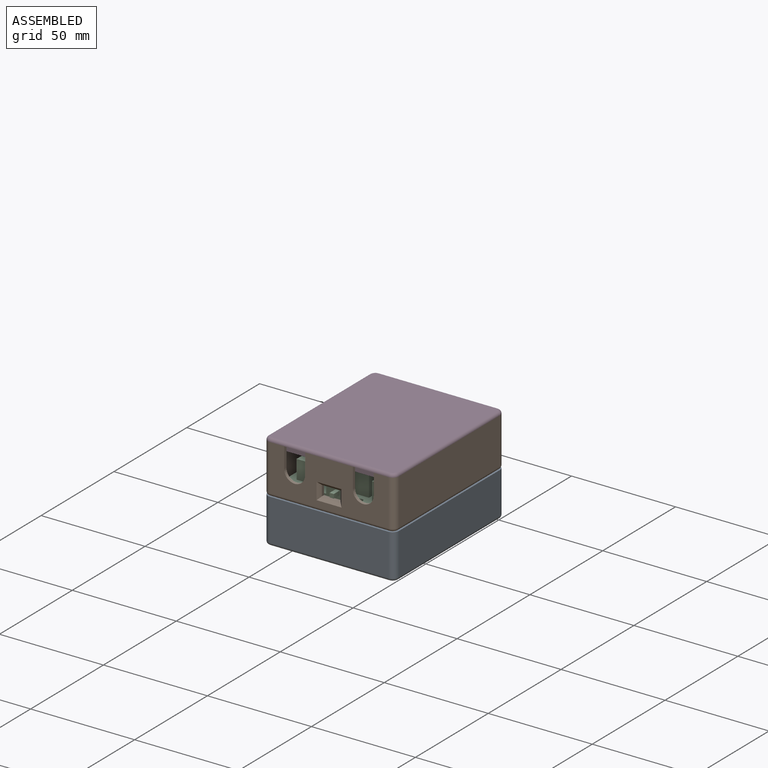
[diagram: assembled view]
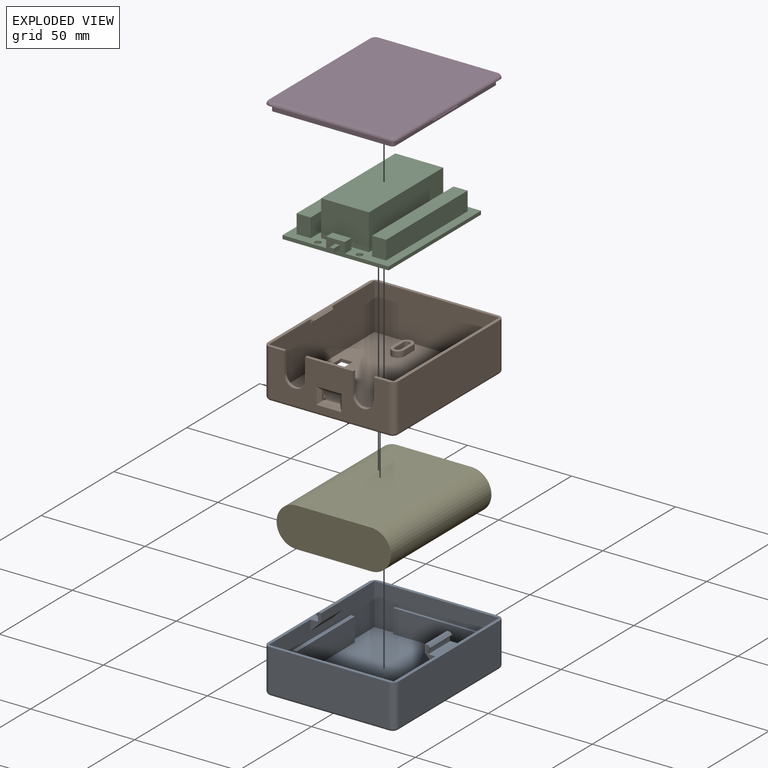
[diagram: exploded view]
GUIDED TOUR — MATED ASSEMBLY (Onshape document 5930b59072e9035f0954241a, AutoMate assembly 5930b59072e9035f0954241a_2f8eb5e6b74b52fa19efbef9_056d9d594d839ffbad7e7a4e_default)

This assembly has 5 components, labeled P0..P4 below (a component is one placed occurrence of a part; the same part can appear more than once), held together by 4 mates. A mate is a constraint between two components; its type names the relative motion it leaves free:
  FASTENED — locks the two components together rigidly (no relative motion),
  SLIDER — leaves translation along the listed axis free.
Axis/direction vectors are unit vectors and 'through' points are millimeter coordinates, both in the assembly's world frame.

MATES
  1. SLIDER "Slider 1": P0 <-> P4, axis (0.000, 0.000, 1.000) through (0.98, -1.56, -21.94) mm
  2. FASTENED "Fastened 2": P2 <-> P1, direction (0.000, 0.000, 1.000) through (-9.28, -32.31, 4.11) mm
  3. FASTENED "Fastened 1": P1 <-> P0, direction (0.000, 0.000, -1.000) through (29.48, -36.31, -1.94) mm
  4. FASTENED "Fastened 3": P3 <-> P1, direction (0.000, 0.000, -1.000) through (1.00, -1.57, 21.31) mm

ASSEMBLY ORDER
  1. P4 — the base component [order verified]
  2. P0 [order verified]
  3. P1 [order verified]
  4. P2 [order verified]
  5. P3 [order verified]
Order-tag legend:
  [order verified] — this step's position reverses a verified removal order: the component was checked to insert without passing through the ones already placed.

Of the 5 components, 1 carries the full construction recipe — the FeatureScript program that regenerates the part's solid from scratch; the rest are supplied as boundary geometry only.
Each toured component is shown spotlighted twice — in the assembled view, then in the exploded view, where a leader line traces a displaced component back to its assembled socket (saturated green if recipe-attached, orange if geometry-only; every other component desaturated gray) — followed by its recipe or geometry summary and the mates that hold it.
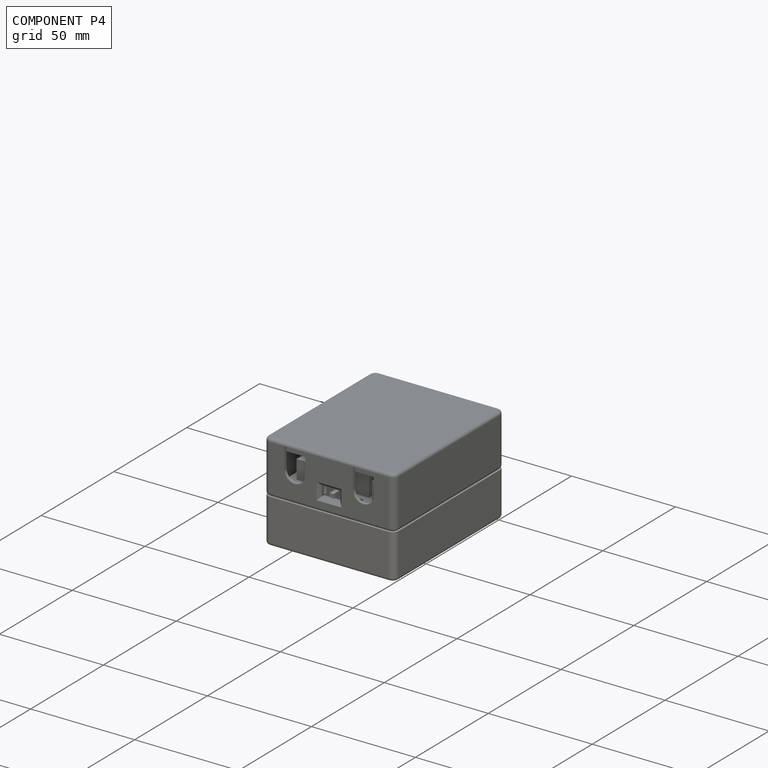
[diagram: component P4 — assembled]
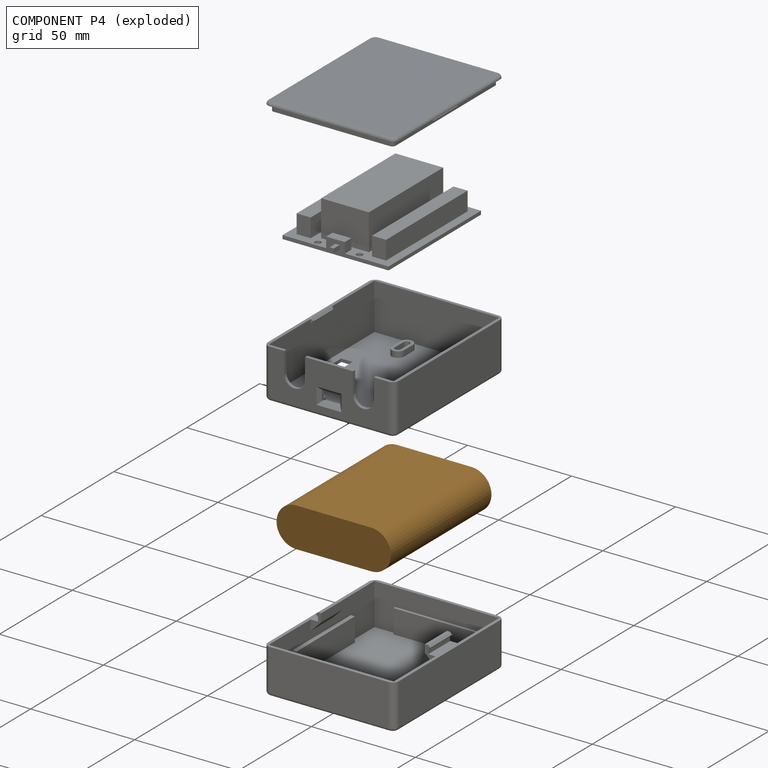
[diagram: component P4 — exploded]
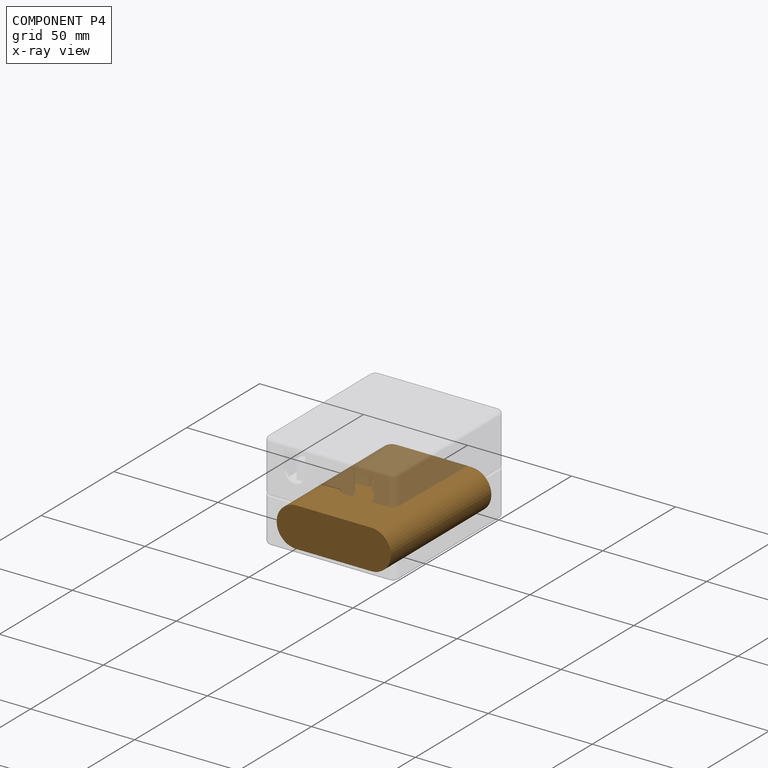
[diagram: component P4 — x-ray view]
COMPONENT P4 — geometry summary (no construction recipe available for this part):
  bounding box: 69.0 x 55.0 x 19.0 mm
  B-rep topology: 1 solid, 6 faces, 24 edges
  volume: 66759 mm^3 (93% of its bounding box)
  symmetry: 2-fold rotationally symmetric about the x axis; 2-fold rotationally symmetric about the y axis; 2-fold rotationally symmetric about the z axis; mirror-symmetric across its x mid-plane, y mid-plane, z mid-plane
Held by: SLIDER mate "Slider 1" to P0.
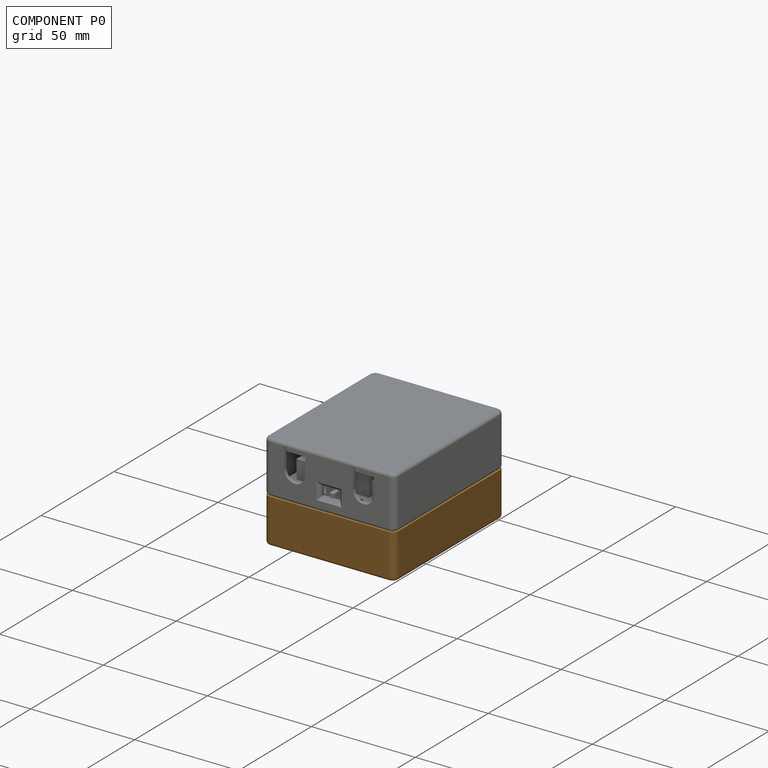
[diagram: component P0 — assembled]
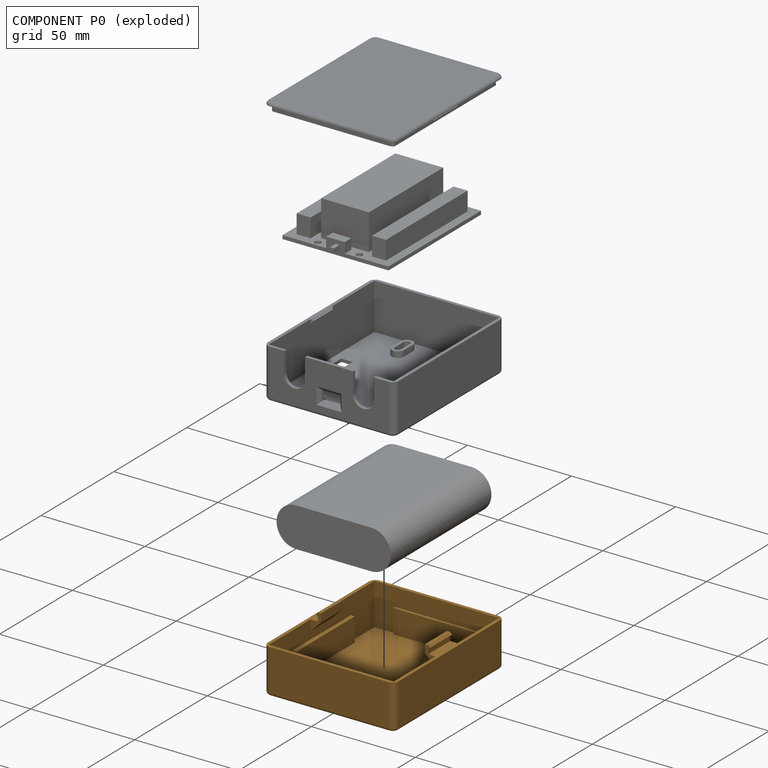
[diagram: component P0 — exploded]
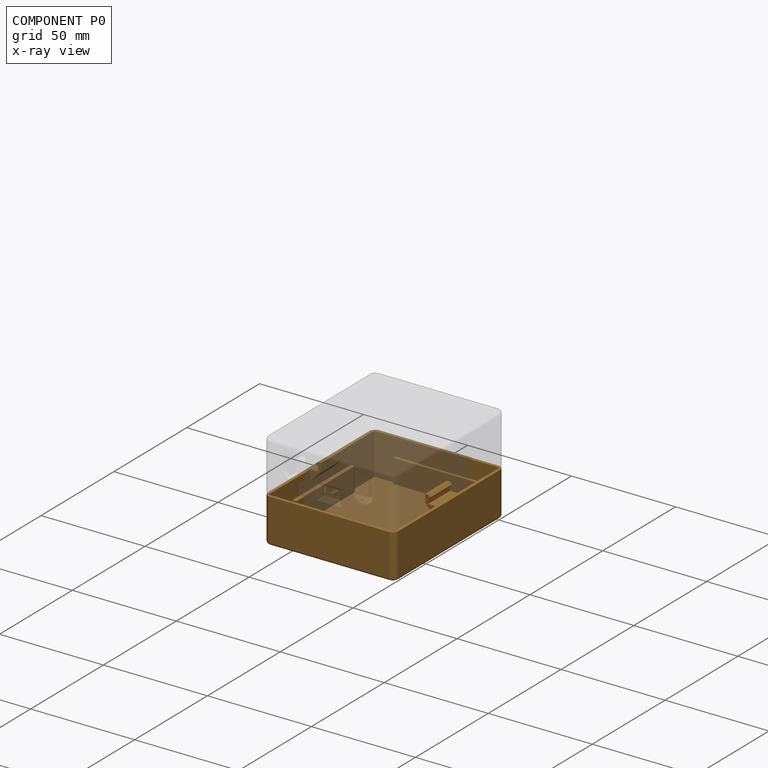
[diagram: component P0 — x-ray view]
COMPONENT P0 — geometry summary (no construction recipe available for this part):
  bounding box: 76.0 x 63.5 x 25.5 mm
  B-rep topology: 1 solid, 55 faces, 296 edges
  volume: 18517 mm^3 (15% of its bounding box)
  symmetry: 2-fold rotationally symmetric about the z axis; mirror-symmetric across its x mid-plane, y mid-plane
Held by: SLIDER mate "Slider 1" to P4; FASTENED mate "Fastened 1" to P1.
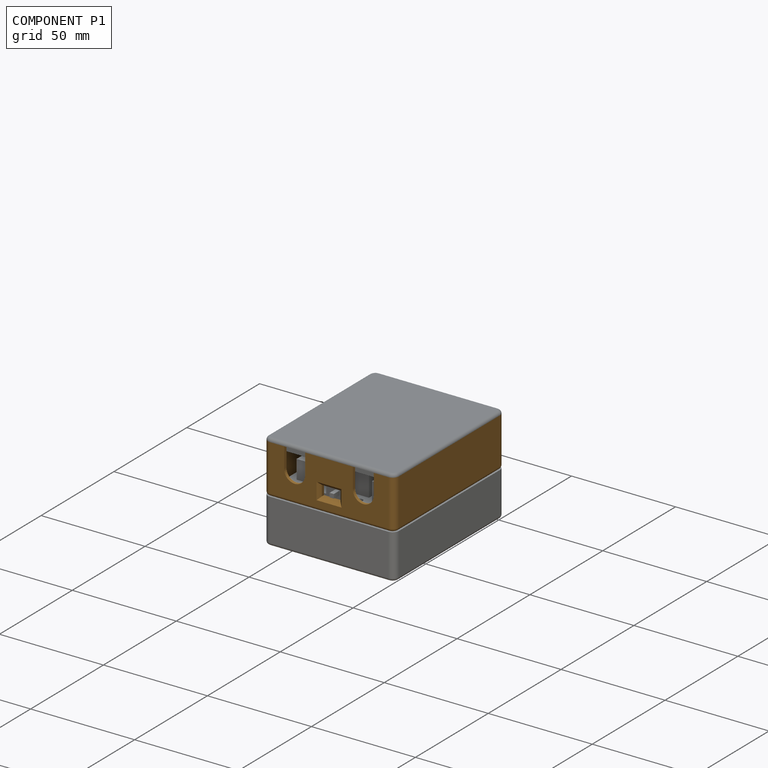
[diagram: component P1 — assembled]
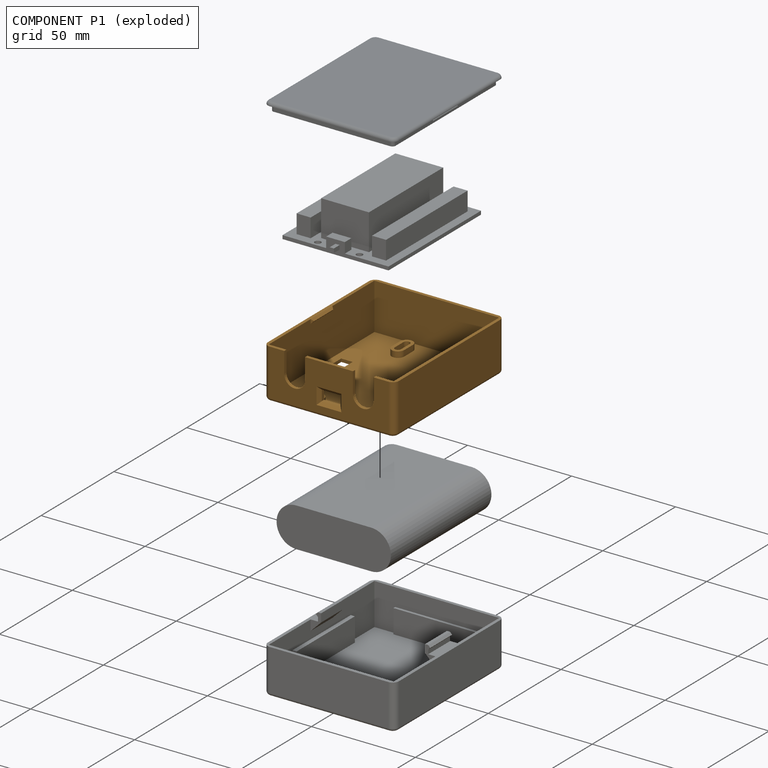
[diagram: component P1 — exploded]
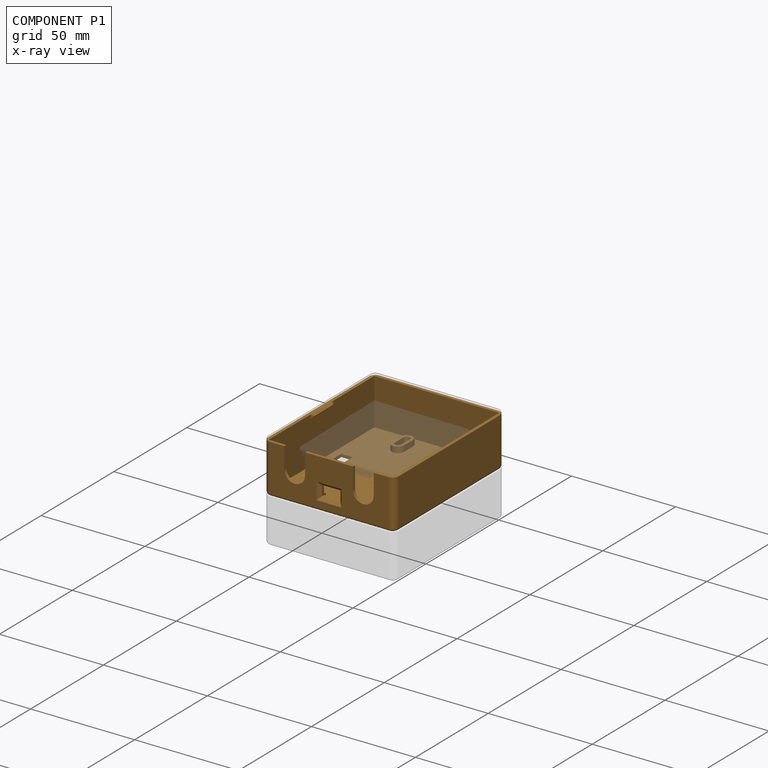
[diagram: component P1 — x-ray view]
COMPONENT P1 — geometry summary (no construction recipe available for this part):
  bounding box: 76.0 x 63.5 x 23.8 mm
  B-rep topology: 1 solid, 96 faces, 480 edges
  volume: 15131 mm^3 (13% of its bounding box)
Held by: FASTENED mate "Fastened 2" to P2; FASTENED mate "Fastened 1" to P0; FASTENED mate "Fastened 3" to P3.
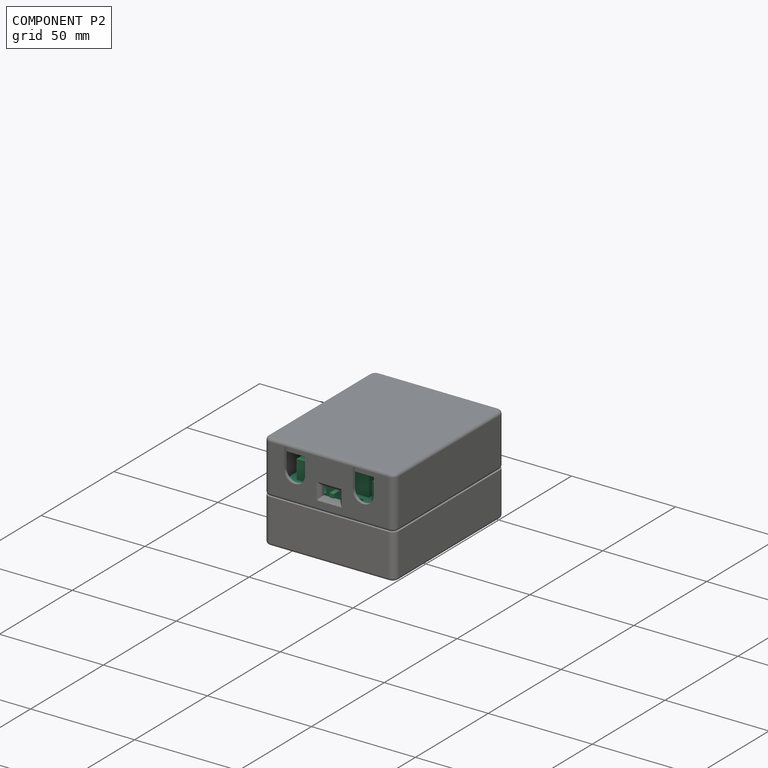
[diagram: component P2 — assembled]
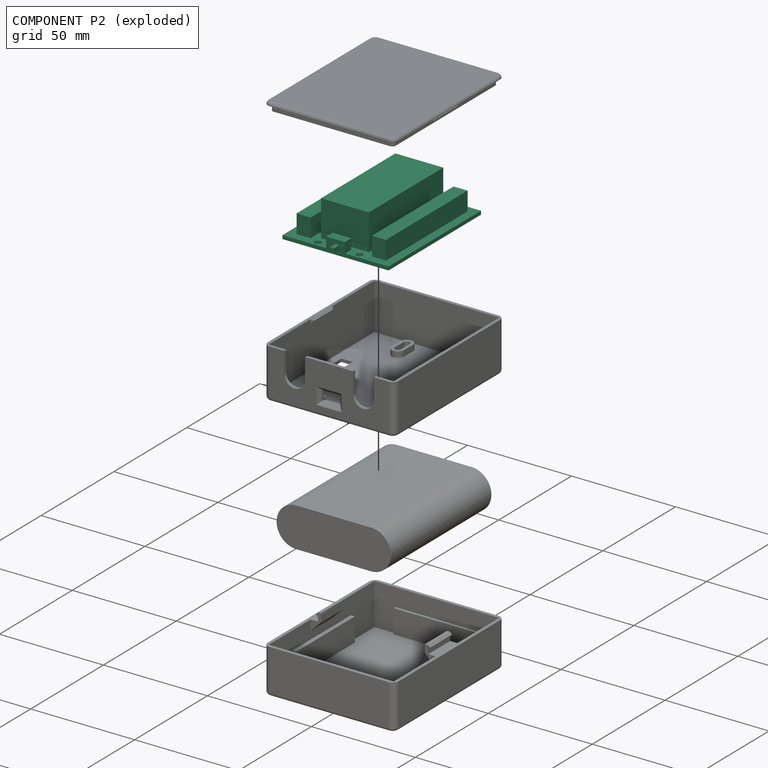
[diagram: component P2 — exploded]
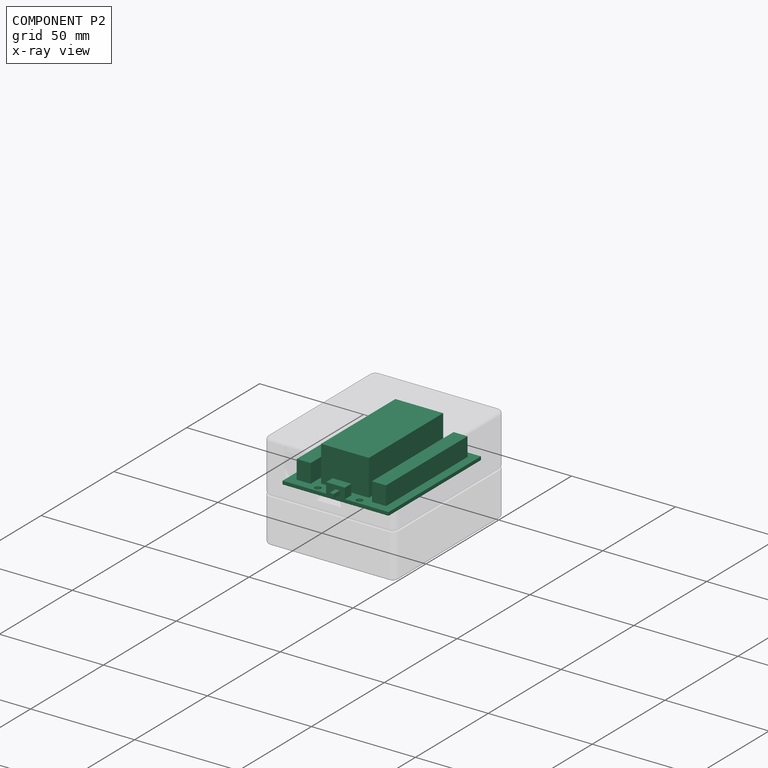
[diagram: component P2 — x-ray view]
COMPONENT P2 — recipe-attached (CADFS 00786195, mesh-verified: the recipe's output STEP matches this component's geometry to below the mesh-comparison resolution (tessellation chordal tolerance ~0.13 mm)).
Held by: FASTENED mate "Fastened 2" to P1.
Construction recipe (FeatureScript — the CAD program that rebuilds this solid; sketch coordinates are in the units given by the * unit suffixes, e.g. mm):

FeatureScript 1511;
import(path : "onshape/std/geometry.fs", version : "1511.0");
import(path : "onshape/std/common.fs", version : "1511.0");
const mm = millimeter;
const VERTEX = EntityType.VERTEX;
const EDGE = EntityType.EDGE;
const FACE = EntityType.FACE;
const BODY = EntityType.BODY;
function v(x, y){return vector(x, y);}
function OD(order){return orderDisambiguation(order);}
function OSD(set){return originalSetDisambiguation(set);}
function TD(topology){return topologyDisambiguation(topology);}
function TDD(query){return trueDependencyDisambiguation(query);}
function sQuery(a, b, c) {return sketchEntityQuery(a, b, c);}

annotation { "Feature Type Name" : "Feature", "Feature Type Description" : "" }
export const myFeature = defineFeature(function(context is Context, id is Id, definition is map)
    precondition{}
    {
        {
            assignVariable(context, id + "F0", {"name" : "board_thickness", "anyValue" : 1.7 * mm});
        }
        {
            assignVariable(context, id + "F1", {"name" : "terminalblock_height", "anyValue" : 9 * mm});
        }
        {
            assignVariable(context, id + "F2", {"name" : "switchbox_height", "anyValue" : 5 * mm});
        }
        {
            assignVariable(context, id + "F3", {"name" : "switch_length", "anyValue" : 4 * mm});
        }
        {
            var Q0;
            Q0=qCreatedBy(makeId("Top.planeOp"),FACE);
            var sketch = newSketch(context, id + "F4", { "sketchPlane" : qUnion([Q0])});
            skLineSegment(sketch, "E0.bottom", {"start": v(-9.58, 23.23) * mm, "end": v(53.92, 23.23) * mm});
            skLineSegment(sketch, "E0.top", {"start": v(-9.58, -27.77) * mm, "end": v(53.92, -27.77) * mm});
            skLineSegment(sketch, "E0.left", {"start": v(-9.58, 23.23) * mm, "end": v(-9.58, -27.77) * mm});
            skLineSegment(sketch, "E0.right", {"start": v(53.92, 23.23) * mm, "end": v(53.92, -27.77) * mm});
            skCircle(sketch, "E1", {"center": v(-7.04, 7.99) * mm, "radius": 1.5 * mm});
            skCircle(sketch, "E2.0.1.0", {"center": v(-7.04, -12.01) * mm, "radius": 1.5 * mm});
            skCircle(sketch, "E2.1.0.0", {"center": v(50.96, 7.99) * mm, "radius": 1.5 * mm});
            skCircle(sketch, "E2.1.1.0", {"center": v(50.96, -12.01) * mm, "radius": 1.5 * mm});
            skLineSegment(sketch, "E2.direction1", {"start": v(-7.04, 7.99) * mm, "end": v(50.96, 7.99) * mm, "construction": true});
            skLineSegment(sketch, "E2.direction2", {"start": v(-7.04, 7.99) * mm, "end": v(-7.04, -12.01) * mm, "construction": true});
            skSolve(sketch);
        }
        {
            var Q0;
            Q0=makeQuery(id+"F4.imprint","IMPRINT",FACE,{"disambiguationData":[TD([[makeQuery(id+"F4.imprint","IMPRINT",EDGE,{"derivedFrom":sQuery(id+"F4.wireOp",EDGE,"E0.bottom")}),-1.0]])]});
            extrude(context, id + "F5", {"entities" : qUnion([Q0]), "depth" : getVariable(context, 'board_thickness'), "offsetDistance" : 25 * mm});
        }
        {
            var Q0;
            Q0=makeQuery(id+"F5.opExtrude","CAP_FACE",FACE,{"disambiguationData":[OSD([sQuery(id+"F4.wireOp",EDGE,"E0.bottom"),sQuery(id+"F4.wireOp",EDGE,"E0.top"),sQuery(id+"F4.wireOp",EDGE,"E0.left"),sQuery(id+"F4.wireOp",EDGE,"E0.right"),sQuery(id+"F4.wireOp",EDGE,"E1"),sQuery(id+"F4.wireOp",EDGE,"E2.0.1.0"),sQuery(id+"F4.wireOp",EDGE,"E2.1.0.0"),sQuery(id+"F4.wireOp",EDGE,"E2.1.1.0")])],"isStart":false});
            var sketch = newSketch(context, id + "F6", { "sketchPlane" : qUnion([Q0])});
            skLineSegment(sketch, "E3", {"start": v(-9.58, -2.27) * mm, "end": v(53.92, -2.27) * mm, "construction": true});
            skLineSegment(sketch, "E4.bottom", {"start": v(-3.05, 9.23) * mm, "end": v(47.95, 9.23) * mm});
            skLineSegment(sketch, "E4.top", {"start": v(-3.05, -13.77) * mm, "end": v(47.95, -13.77) * mm});
            skLineSegment(sketch, "E4.left", {"start": v(-3.05, 9.23) * mm, "end": v(-3.05, -13.77) * mm});
            skLineSegment(sketch, "E4.right", {"start": v(47.95, 9.23) * mm, "end": v(47.95, -13.77) * mm});
            skLineSegment(sketch, "E5.bottom", {"start": v(-5.58, 12.48) * mm, "end": v(50.42, 12.48) * mm});
            skLineSegment(sketch, "E5.top", {"start": v(-5.58, 19.23) * mm, "end": v(50.42, 19.23) * mm});
            skLineSegment(sketch, "E5.left", {"start": v(50.42, 19.23) * mm, "end": v(50.42, 12.48) * mm});
            skLineSegment(sketch, "E5.right", {"start": v(-5.58, 19.23) * mm, "end": v(-5.58, 12.48) * mm});
            skLineSegment(sketch, "E6.bottom", {"start": v(-9.58, -6.77) * mm, "end": v(-5.13, -6.77) * mm});
            skLineSegment(sketch, "E6.top", {"start": v(-9.58, 2.23) * mm, "end": v(-5.13, 2.23) * mm});
            skLineSegment(sketch, "E6.left", {"start": v(-9.58, -6.77) * mm, "end": v(-9.58, 2.23) * mm});
            skLineSegment(sketch, "E6.right", {"start": v(-5.13, -6.77) * mm, "end": v(-5.13, 2.23) * mm});
            skLineSegment(sketch, "E7.MirrorCS", {"start": v(-5.58, -23.77) * mm, "end": v(50.42, -23.77) * mm});
            skLineSegment(sketch, "E8.MirrorCS", {"start": v(-5.58, -23.77) * mm, "end": v(-5.58, -17.02) * mm});
            skLineSegment(sketch, "E9.MirrorCS", {"start": v(-5.58, -17.02) * mm, "end": v(50.42, -17.02) * mm});
            skLineSegment(sketch, "E10.MirrorCS", {"start": v(50.42, -23.77) * mm, "end": v(50.42, -17.02) * mm});
            skPoint(sketch, "E11", {"position": v(-5.13, -2.27) * mm});
            skPoint(sketch, "E12", {"position": v(-3.05, -2.27) * mm});
            skSolve(sketch);
        }
        {
            var Q0;
            Q0=makeQuery(id+"F6.imprint","IMPRINT",FACE,{"disambiguationData":[TD([[makeQuery(id+"F6.imprint","IMPRINT",EDGE,{"derivedFrom":sQuery(id+"F6.wireOp",EDGE,"E4.bottom")}),-1.0]])]});
            extrude(context, id + "F7", {"entities" : qUnion([Q0]), "operationType" : NewBodyOperationType.ADD, "depth" : 17.3 * mm, "offsetDistance" : 25 * mm});
        }
        {
            var Q0;
            Q0=makeQuery(id+"F6.imprint","IMPRINT",FACE,{"disambiguationData":[TD([[makeQuery(id+"F6.imprint","IMPRINT",EDGE,{"derivedFrom":sQuery(id+"F6.wireOp",EDGE,"E5.bottom")}),1.0]])]});
            var Q1;
            Q1=makeQuery(id+"F6.imprint","IMPRINT",FACE,{"disambiguationData":[TD([[makeQuery(id+"F6.imprint","IMPRINT",EDGE,{"derivedFrom":sQuery(id+"F6.wireOp",EDGE,"E7.MirrorCS")}),1.0]])]});
            extrude(context, id + "F8", {"entities" : qUnion([Q0, Q1]), "operationType" : NewBodyOperationType.ADD, "depth" : getVariable(context, 'terminalblock_height'), "offsetDistance" : 25 * mm});
        }
        {
            var Q0;
            Q0=makeQuery(id+"F6.imprint","IMPRINT",FACE,{"disambiguationData":[TD([[makeQuery(id+"F6.imprint","IMPRINT",EDGE,{"derivedFrom":sQuery(id+"F6.wireOp",EDGE,"E6.bottom")}),1.0]])]});
            extrude(context, id + "F9", {"entities" : qUnion([Q0]), "operationType" : NewBodyOperationType.ADD, "depth" : getVariable(context, 'switchbox_height'), "offsetDistance" : 25 * mm});
        }
        {
            var Q0;
            Q0=makeQuery(id+"F9.boolean.opBoolean","MERGE",FACE,{"derivedFrom":[makeQuery(id+"F5.opExtrude","SWEPT_FACE",FACE,{"disambiguationData":[OSD([sQuery(id+"F4.wireOp",EDGE,"E0.left")])]}),makeQuery(id+"F9.opExtrude","SWEPT_FACE",FACE,{"disambiguationData":[OSD([sQuery(id+"F6.wireOp",EDGE,"E6.left")])]})]});
            var sketch = newSketch(context, id + "F10", { "sketchPlane" : qUnion([Q0])});
            skLineSegment(sketch, "E13.bottom", {"start": v(-2.23, 6.7) * mm, "end": v(6.77, 6.7) * mm});
            skLineSegment(sketch, "E13.top", {"start": v(-2.23, 6.7) * mm, "end": v(6.77, 6.7) * mm});
            skLineSegment(sketch, "E13.left", {"start": v(-2.23, 6.7) * mm, "end": v(-2.23, 6.7) * mm});
            skLineSegment(sketch, "E13.right", {"start": v(6.77, 6.7) * mm, "end": v(6.77, 6.7) * mm});
            skLineSegment(sketch, "E14.bottom", {"start": v(6.77, 1.7) * mm, "end": v(-2.23, 1.7) * mm});
            skLineSegment(sketch, "E14.top", {"start": v(6.77, 1.7) * mm, "end": v(-2.23, 1.7) * mm});
            skLineSegment(sketch, "E14.left", {"start": v(6.77, 1.7) * mm, "end": v(6.77, 1.7) * mm});
            skLineSegment(sketch, "E14.right", {"start": v(-2.23, 1.7) * mm, "end": v(-2.23, 1.7) * mm});
            skLineSegment(sketch, "E15.top", {"start": v(-2.23, 1.7) * mm, "end": v(6.77, 1.7) * mm});
            skLineSegment(sketch, "E15.left", {"start": v(-2.23, 6.7) * mm, "end": v(-2.23, 1.7) * mm});
            skLineSegment(sketch, "E15.right", {"start": v(6.77, 6.7) * mm, "end": v(6.77, 1.7) * mm});
            skLineSegment(sketch, "E16.bottom", {"start": v(2.27, 4.78) * mm, "end": v(4.27, 4.78) * mm});
            skLineSegment(sketch, "E16.top", {"start": v(2.27, 2.78) * mm, "end": v(4.27, 2.78) * mm});
            skLineSegment(sketch, "E16.left", {"start": v(2.27, 4.78) * mm, "end": v(2.27, 2.78) * mm});
            skLineSegment(sketch, "E16.right", {"start": v(4.27, 4.78) * mm, "end": v(4.27, 2.78) * mm});
            skSolve(sketch);
        }
        {
            var Q0;
            Q0=makeQuery(id+"F10.imprint","IMPRINT",FACE,{"disambiguationData":[TD([[makeQuery(id+"F10.imprint","IMPRINT",EDGE,{"derivedFrom":sQuery(id+"F10.wireOp",EDGE,"E16.bottom")}),-1.0]])]});
            extrude(context, id + "F11", {"entities" : qUnion([Q0]), "operationType" : NewBodyOperationType.ADD, "depth" : getVariable(context, 'switch_length'), "offsetDistance" : 25 * mm});
        }
    });
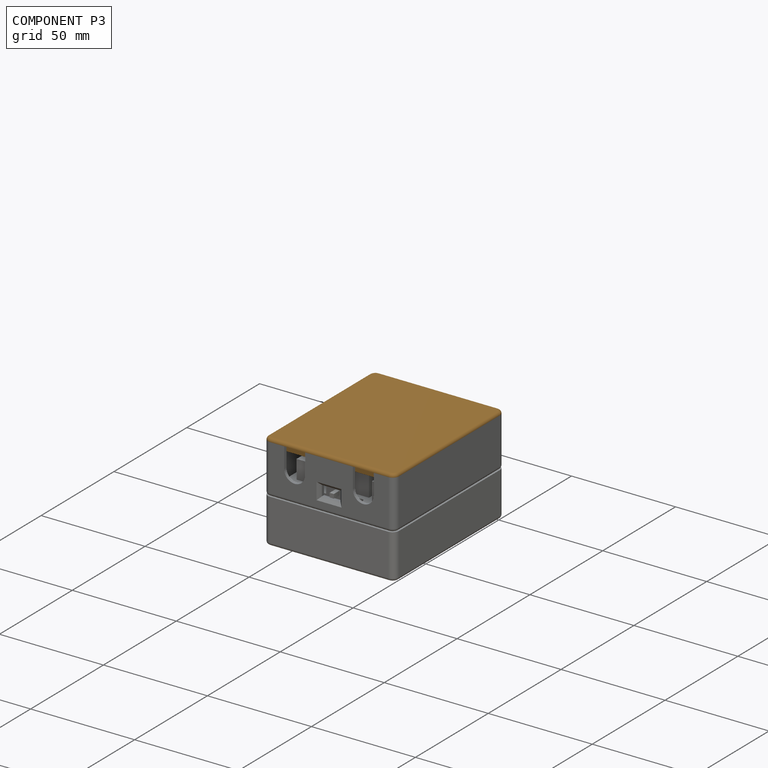
[diagram: component P3 — assembled]
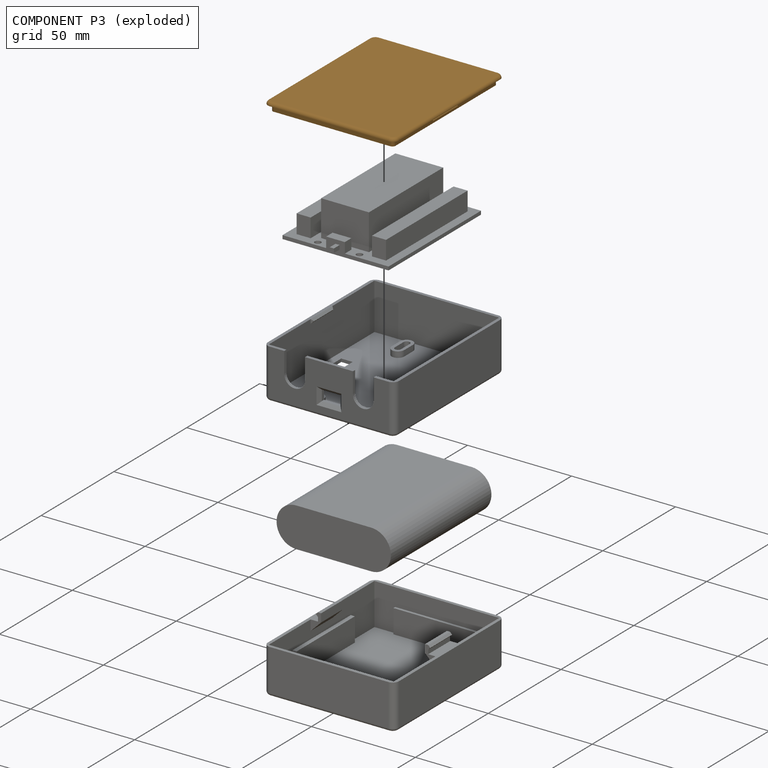
[diagram: component P3 — exploded]
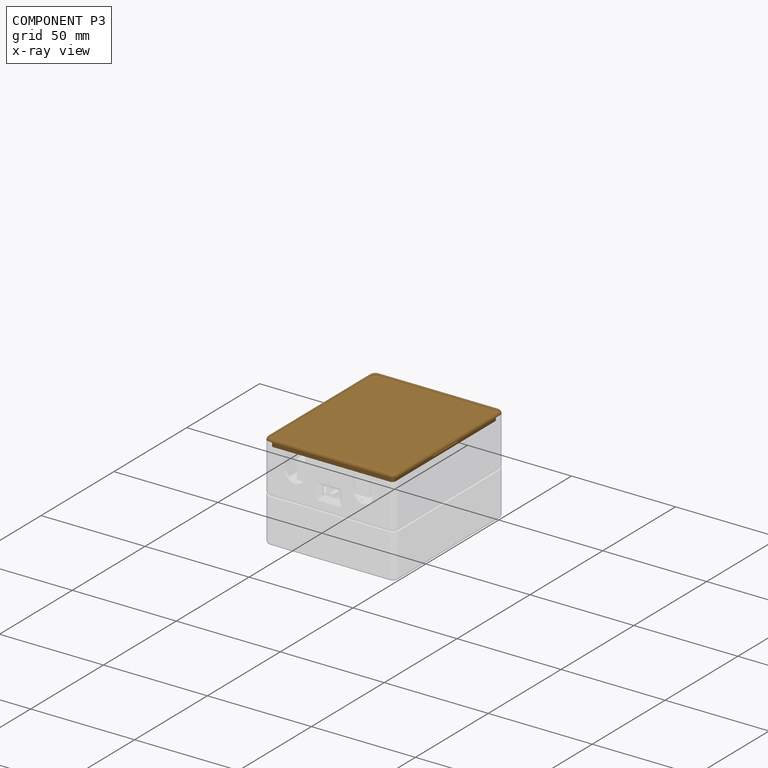
[diagram: component P3 — x-ray view]
COMPONENT P3 — geometry summary (no construction recipe available for this part):
  bounding box: 76.0 x 63.5 x 4.5 mm
  B-rep topology: 1 solid, 32 faces, 160 edges
  volume: 10329 mm^3 (48% of its bounding box)
  symmetry: 2-fold rotationally symmetric about the z axis; mirror-symmetric across its x mid-plane, y mid-plane
Held by: FASTENED mate "Fastened 3" to P1.
PROVENANCE & LICENSES
Assembly (occurrences, transforms, mates, per-part STEP geometry): AutoMate dataset, Zenodo record 7776208, CC0.
Construction recipes: CADFS (HuggingFace VladPyatov/CADFS, CC-BY-4.0, layered over the ABC dataset), FeatureScript reconstruction programs keyed by ABC model id.
Join: ABC meta listings map ABC model id -> Onshape documentId; within a shared document, parts are matched by geometric signature (bounding-box dims + volume at 0.1% relative tolerance, exact B-rep face/solid counts).
Verification: 1 of this assembly's 5 components carries a recipe attachment, and every attachment is mesh-verified: the CADFS STEP and the AutoMate member STEP were compared as meshes in their shared local frame (symmetric sampled-point-to-mesh distance); worst across the 1 attachment: below the mesh-comparison resolution (tessellation chordal tolerance ~0.13 mm) on a 87 mm part.
Renders: orthographic iso camera (az 35 / el 25); the floor grid conveys scale (grid pitch printed in each image; no ruler). In the exploded view each component is displaced by its stored offset vector: the offsets alone carry the explosion direction (mate normal/axis signs are not orientation cues and do not encode it), and separation distances are assigned per mate-chain, not proportionally to assembly-order depth.
